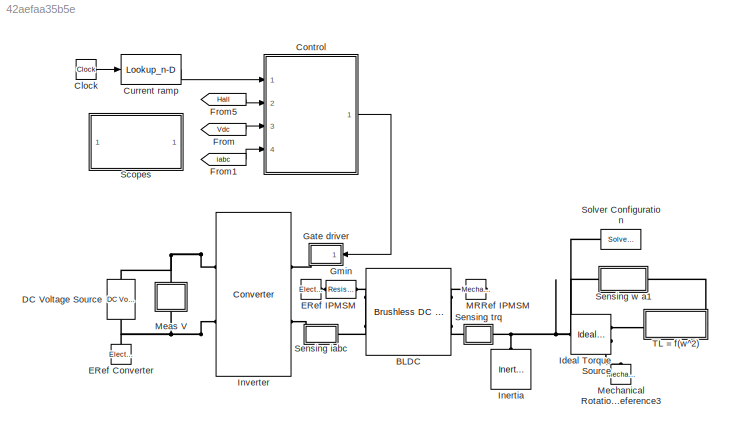
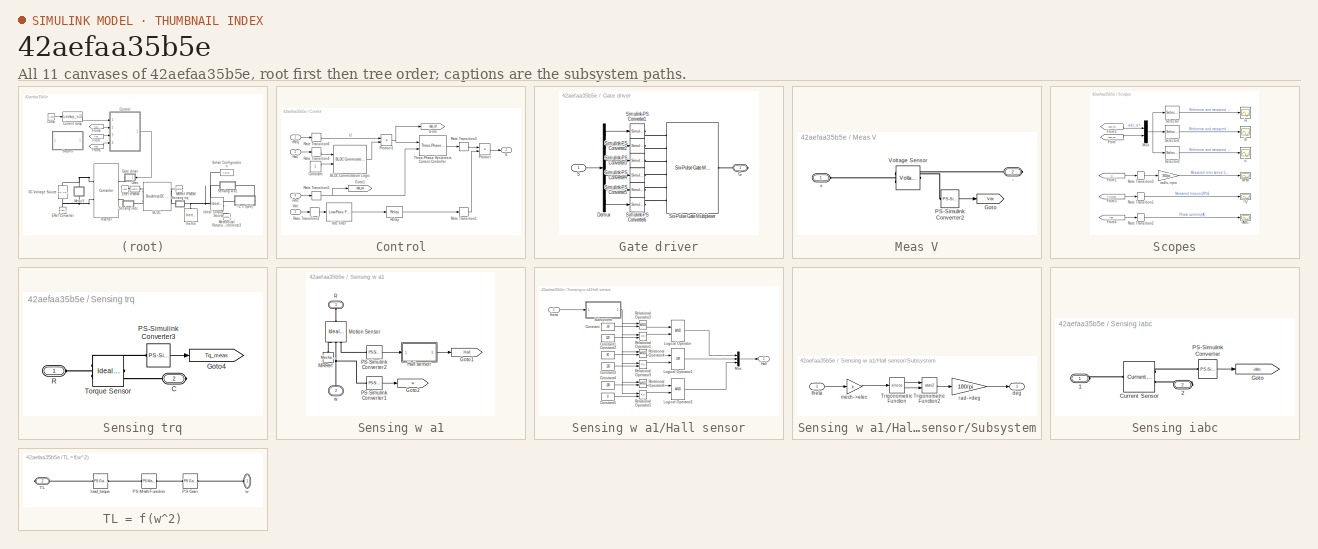
[diagram: thumbnail index - all 11 canvases of the model, root first then tree order]
MODEL slx_42aefaa35b5e
KIND model
CONFIG AbsTol = auto
CONFIG EnableMultiTasking = off
CONFIG FixedStep = auto
CONFIG MaxStep = auto
CONFIG MinStep = auto
CONFIG RelTol = 1e-3
CONFIG SampleTimeConstraint = Unconstrained
CONFIG Solver = VariableStepAuto
CONFIG SolverName = VariableStepAuto
CONFIG StartTime = 0.0
CONFIG StopTime = 1
BLOCK [Reference] BLDC  REF=pe_lib/Machines/Permanent Magnet
Rotor/Brushless DC Motor
  Ports = [0, 0, 0, 0, 0, 2, 2]
  SourceBlock = pe_lib/Machines/Permanent Magnet\nRotor/Brushless DC Motor
  SourceProductBaseCode = PS
  SourceProductName = Simscape Power Systems
  SourceType = Brushless DC Motor
BLOCK [Clock] Clock
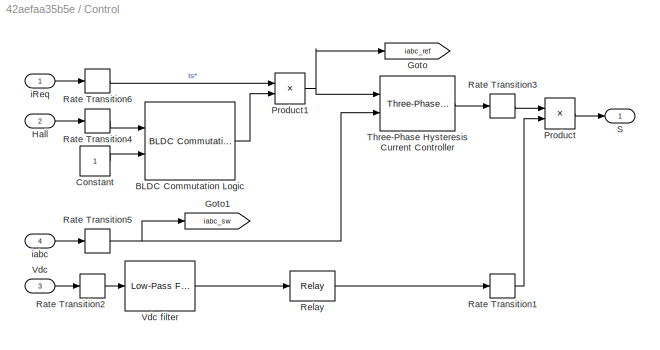
BLOCK [SubSystem] Control
  Ports = [4, 1]
  RequestExecContextInheritance = off
BLOCK [Reference] Control/BLDC Commutation Logic  REF=peBldcCommutationLogic/BLDC Commutation Logic
  Ports = [2, 1]
  SourceBlock = peBldcCommutationLogic/BLDC Commutation Logic
  SourceType = BLDC Commutation Logic
BLOCK [Constant] Control/Constant
BLOCK [Goto] Control/Goto
  GotoTag = iabc_ref
  TagVisibility = global
BLOCK [Goto] Control/Goto1
  GotoTag = iabc_sw
  TagVisibility = global
BLOCK [Inport] Control/Hall
  IconDisplay = Port number
  Port = 2
BLOCK [Product] Control/Product
  InputSameDT = off
  OutDataTypeStr = Inherit: Inherit via internal rule
  Ports = [2, 1]
  RndMeth = Floor
  SaturateOnIntegerOverflow = off
BLOCK [Product] Control/Product1
  InputSameDT = off
  OutDataTypeStr = Inherit: Inherit via internal rule
  Ports = [2, 1]
  RndMeth = Floor
  SaturateOnIntegerOverflow = off
BLOCK [RateTransition] Control/Rate Transition1
  OutPortSampleTime = Ts
BLOCK [RateTransition] Control/Rate Transition2
  OutPortSampleTime = Tsc
BLOCK [RateTransition] Control/Rate Transition3
  OutPortSampleTime = Ts
BLOCK [RateTransition] Control/Rate Transition4
  OutPortSampleTime = Tsc
BLOCK [RateTransition] Control/Rate Transition5
  OutPortSampleTime = Tsc
BLOCK [RateTransition] Control/Rate Transition6
  OutPortSampleTime = Tsc
BLOCK [Relay] Control/Relay
  InputProcessing = Elements as channels (sample based)
  OffSwitchValue = Vdc/4
  OnSwitchValue = Vdc/2
BLOCK [Outport] Control/S
  IconDisplay = Port number
BLOCK [Reference] Control/Three-Phase Hysteresis Current Controller  REF=peHysteresisControl/Three-Phase Hysteresis
Current Controller
  Ports = [2, 1]
  SourceBlock = peHysteresisControl/Three-Phase Hysteresis\nCurrent Controller
  SourceType = Three-Phase Hysteresis Current Controller
BLOCK [Inport] Control/Vdc
  IconDisplay = Port number
  Port = 3
BLOCK [Reference] Control/Vdc filter  REF=peGeneralControl/Low-Pass Filter
(Discrete or Continuous)
  Ports = [1, 1]
  SourceBlock = peGeneralControl/Low-Pass Filter\n(Discrete or Continuous)
  SourceType = Low-Pass Filter (Discrete or Continuous)
BLOCK [Inport] Control/iReq
  IconDisplay = Port number
BLOCK [Inport] Control/iabc
  IconDisplay = Port number
  Port = 4
BLOCK [Lookup_n-D] Current ramp
  BreakpointsForDimension1 = [0 0.5 1]
  InternalRulePriority = Speed
  NumberOfTableDimensions = 1
  Ports = [1, 1]
  RndMeth = Simplest
  Table = [0 iref iref]
BLOCK [Reference] DC Voltage Source  REF=fl_lib/Electrical/Electrical Sources/DC Voltage Source
  Ports = [0, 0, 0, 0, 0, 1, 1]
  SourceBlock = fl_lib/Electrical/Electrical Sources/DC Voltage Source
  SourceProductName = Foundation Library
  SourceType = DC Voltage Source
BLOCK [Reference] ERef Converter  REF=fl_lib/Electrical/Electrical Elements/Electrical Reference
  Ports = [0, 0, 0, 0, 0, 1]
  SourceBlock = fl_lib/Electrical/Electrical Elements/Electrical Reference
  SourceProductName = Foundation Library
  SourceType = Electrical Reference
BLOCK [Reference] ERef IPMSM  REF=fl_lib/Electrical/Electrical Elements/Electrical Reference
  Ports = [0, 0, 0, 0, 0, 1]
  SourceBlock = fl_lib/Electrical/Electrical Elements/Electrical Reference
  SourceProductName = Foundation Library
  SourceType = Electrical Reference
BLOCK [From] From
  GotoTag = Vdc
  TagVisibility = global
BLOCK [From] From1
  GotoTag = iabc
  TagVisibility = global
BLOCK [From] From5
  GotoTag = Hall
  TagVisibility = global
BLOCK [SubSystem] Gate driver
  Ports = [1, 0, 0, 0, 0, 0, 1]
  RequestExecContextInheritance = off
BLOCK [Demux] Gate driver/Demux
  DisplayOption = bar
  Outputs = 6
  Ports = [1, 6]
BLOCK [PMIOPort] Gate driver/G
  Side = Right
BLOCK [Inport] Gate driver/S
  IconDisplay = Port number
BLOCK [Reference] Gate driver/Simulink-PS Converter1  REF=nesl_utility/Simulink-PS
Converter
  Ports = [1, 0, 0, 0, 0, 0, 1]
  SourceBlock = nesl_utility/Simulink-PS\nConverter
  SourceProductBaseCode = SS
  SourceProductName = Simscape
  SourceType = Simulink-PS\nConverter
BLOCK [Reference] Gate driver/Simulink-PS Converter2  REF=nesl_utility/Simulink-PS
Converter
  Ports = [1, 0, 0, 0, 0, 0, 1]
  SourceBlock = nesl_utility/Simulink-PS\nConverter
  SourceProductBaseCode = SS
  SourceProductName = Simscape
  SourceType = Simulink-PS\nConverter
BLOCK [Reference] Gate driver/Simulink-PS Converter3  REF=nesl_utility/Simulink-PS
Converter
  Ports = [1, 0, 0, 0, 0, 0, 1]
  SourceBlock = nesl_utility/Simulink-PS\nConverter
  SourceProductBaseCode = SS
  SourceProductName = Simscape
  SourceType = Simulink-PS\nConverter
BLOCK [Reference] Gate driver/Simulink-PS Converter4  REF=nesl_utility/Simulink-PS
Converter
  Ports = [1, 0, 0, 0, 0, 0, 1]
  SourceBlock = nesl_utility/Simulink-PS\nConverter
  SourceProductBaseCode = SS
  SourceProductName = Simscape
  SourceType = Simulink-PS\nConverter
BLOCK [Reference] Gate driver/Simulink-PS Converter5  REF=nesl_utility/Simulink-PS
Converter
  Ports = [1, 0, 0, 0, 0, 0, 1]
  SourceBlock = nesl_utility/Simulink-PS\nConverter
  SourceProductBaseCode = SS
  SourceProductName = Simscape
  SourceType = Simulink-PS\nConverter
BLOCK [Reference] Gate driver/Simulink-PS Converter6  REF=nesl_utility/Simulink-PS
Converter
  Ports = [1, 0, 0, 0, 0, 0, 1]
  SourceBlock = nesl_utility/Simulink-PS\nConverter
  SourceProductBaseCode = SS
  SourceProductName = Simscape
  SourceType = Simulink-PS\nConverter
BLOCK [Reference] Gate driver/Six-Pulse Gate Multiplexer  REF=pe_lib/Semiconductors/Six-Pulse Gate
Multiplexer
  Ports = [0, 0, 0, 0, 0, 6, 1]
  SourceBlock = pe_lib/Semiconductors/Six-Pulse Gate\nMultiplexer
  SourceProductBaseCode = PS
  SourceProductName = Simscape Power Systems
  SourceType = Six-Pulse Gate\nMultiplexer
BLOCK [Reference] Gmin  REF=fl_lib/Electrical/Electrical Elements/Resistor
  Ports = [0, 0, 0, 0, 0, 1, 1]
  SourceBlock = fl_lib/Electrical/Electrical Elements/Resistor
  SourceProductName = Foundation Library
  SourceType = Resistor
BLOCK [Reference] Ideal Torque Source  REF=fl_lib/Mechanical/Mechanical Sources/Ideal Torque Source
  Ports = [0, 0, 0, 0, 0, 1, 2]
  SourceBlock = fl_lib/Mechanical/Mechanical Sources/Ideal Torque Source
  SourceProductBaseCode = SS
  SourceProductName = Simscape
  SourceType = Ideal Torque Source
BLOCK [Reference] Inertia  REF=fl_lib/Mechanical/Rotational Elements/Inertia
  Ports = [0, 0, 0, 0, 0, 1]
  SourceBlock = fl_lib/Mechanical/Rotational Elements/Inertia
  SourceProductName = Foundation Library
  SourceType = Inertia
BLOCK [Reference] Inverter  REF=pe_lib/Semiconductors/Converter
  Ports = [0, 0, 0, 0, 0, 2, 2]
  SourceBlock = pe_lib/Semiconductors/Converter
  SourceProductBaseCode = PS
  SourceProductName = Simscape Power Systems
  SourceType = Converter
BLOCK [Reference] MRRef IPMSM  REF=fl_lib/Mechanical/Rotational Elements/Mechanical
Rotational Reference
  Ports = [0, 0, 0, 0, 0, 1]
  SourceBlock = fl_lib/Mechanical/Rotational Elements/Mechanical\nRotational Reference
  SourceProductName = Foundation Library
  SourceType = Mechanical\nRotational Reference
BLOCK [SubSystem] Meas V
  Ports = [0, 0, 0, 0, 0, 1, 1]
  RequestExecContextInheritance = off
BLOCK [PMIOPort] Meas V/+
  Side = Left
BLOCK [PMIOPort] Meas V/-
  Port = 2
  Side = Right
BLOCK [Goto] Meas V/Goto
  GotoTag = Vdc
  TagVisibility = global
BLOCK [Reference] Meas V/PS-Simulink Converter2  REF=nesl_utility/PS-Simulink
Converter
  Ports = [0, 1, 0, 0, 0, 1]
  SourceBlock = nesl_utility/PS-Simulink\nConverter
  SourceProductBaseCode = SS
  SourceProductName = Simscape
  SourceType = PS-Simulink\nConverter
BLOCK [Reference] Meas V/Voltage Sensor  REF=fl_lib/Electrical/Electrical Sensors/Voltage Sensor
  Ports = [0, 0, 0, 0, 0, 1, 2]
  SourceBlock = fl_lib/Electrical/Electrical Sensors/Voltage Sensor
  SourceProductName = Foundation Library
  SourceType = Voltage Sensor
BLOCK [Reference] Mechanical Rotational Reference3  REF=fl_lib/Mechanical/Rotational Elements/Mechanical
Rotational Reference
  Ports = [0, 0, 0, 0, 0, 1]
  SourceBlock = fl_lib/Mechanical/Rotational Elements/Mechanical\nRotational Reference
  SourceProductName = Foundation Library
  SourceType = Mechanical\nRotational Reference
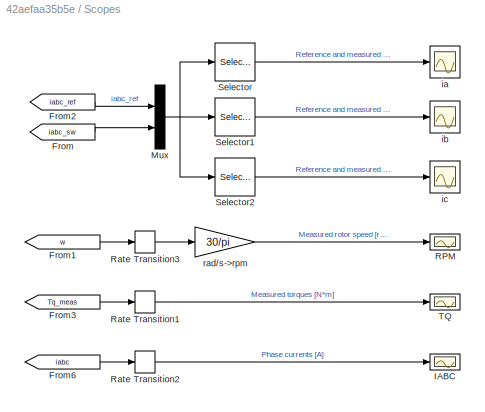
BLOCK [SubSystem] Scopes
  Ports = []
  RequestExecContextInheritance = off
BLOCK [From] Scopes/From
  GotoTag = iabc_sw
  TagVisibility = global
BLOCK [From] Scopes/From1
  GotoTag = w
  TagVisibility = global
BLOCK [From] Scopes/From2
  GotoTag = iabc_ref
  TagVisibility = global
BLOCK [From] Scopes/From3
  GotoTag = Tq_meas
  TagVisibility = global
BLOCK [From] Scopes/From6
  GotoTag = iabc
  TagVisibility = global
BLOCK [Scope] Scopes/IABC
  Floating = off
  NumInputPorts = 1
  Ports = [1]
  ScopeSpecificationString = Simulink.scopes.TimeScopeBlockCfg('CurrentConfiguration', extmgr.ConfigurationSet(extmgr.Configuration('Core','General UI',true),extmgr.Configuration('Core','Source UI',true),extmgr.Configuration('Sources','WiredSimulink',true,'DataLoggingVariableName','ScopeData1','DataLoggingSaveFormat','Array','DataLoggingDecimation','1','DataLoggingDecimateData',true),extmgr.Configuration('Visuals','Time Domai...<+1595ch>
BLOCK [Mux] Scopes/Mux
  DisplayOption = bar
  Inputs = 2
  Ports = [2, 1]
BLOCK [Scope] Scopes/RPM
  Floating = off
  NumInputPorts = 1
  Ports = [1]
  ScopeSpecificationString = Simulink.scopes.TimeScopeBlockCfg('CurrentConfiguration', extmgr.ConfigurationSet(extmgr.Configuration('Core','General UI',true),extmgr.Configuration('Core','Source UI',true),extmgr.Configuration('Sources','WiredSimulink',true,'DataLoggingVariableName','ScopeData5','DataLoggingSaveFormat','Array','DataLoggingDecimation','1','DataLoggingDecimateData',true),extmgr.Configuration('Visuals','Time Domai...<+1567ch>
BLOCK [RateTransition] Scopes/Rate Transition1
  OutPortSampleTime = Tsc
BLOCK [RateTransition] Scopes/Rate Transition2
  OutPortSampleTime = Tsc
BLOCK [RateTransition] Scopes/Rate Transition3
  OutPortSampleTime = Tsc
BLOCK [Selector] Scopes/Selector
  IndexOptions = Index vector (dialog)
  Indices = [1 4]
  InputPortWidth = 6
  OutputSizes = 1
  Ports = [1, 1]
BLOCK [Selector] Scopes/Selector1
  IndexOptions = Index vector (dialog)
  Indices = [2 5]
  InputPortWidth = 6
  OutputSizes = 1
  Ports = [1, 1]
BLOCK [Selector] Scopes/Selector2
  IndexOptions = Index vector (dialog)
  Indices = [3 6]
  InputPortWidth = 6
  OutputSizes = 1
  Ports = [1, 1]
BLOCK [Scope] Scopes/TQ
  Floating = off
  NumInputPorts = 1
  Ports = [1]
  ScopeSpecificationString = Simulink.scopes.TimeScopeBlockCfg('CurrentConfiguration', extmgr.ConfigurationSet(extmgr.Configuration('Core','General UI',true),extmgr.Configuration('Core','Source UI',true),extmgr.Configuration('Sources','WiredSimulink',true,'DataLoggingVariableName','ScopeData7','DataLoggingSaveFormat','Array','DataLoggingDecimation','1','DataLoggingDecimateData',true),extmgr.Configuration('Visuals','Time Domai...<+1545ch>
BLOCK [Scope] Scopes/ia
  Floating = off
  NumInputPorts = 1
  Ports = [1]
  ScopeSpecificationString = Simulink.scopes.TimeScopeBlockCfg('CurrentConfiguration', extmgr.ConfigurationSet(extmgr.Configuration('Core','General UI',true),extmgr.Configuration('Core','Source UI',true),extmgr.Configuration('Sources','WiredSimulink',true,'DataLoggingVariableName','ScopeData1'),extmgr.Configuration('Visuals','Time Domain',true,'SerializedDisplays',{struct('MinYLimReal','-91.30364','MaxYLimReal','82.31212','YL...<+1503ch>
BLOCK [Scope] Scopes/ib
  Floating = off
  NumInputPorts = 1
  Ports = [1]
  ScopeSpecificationString = Simulink.scopes.TimeScopeBlockCfg('CurrentConfiguration', extmgr.ConfigurationSet(extmgr.Configuration('Core','General UI',true),extmgr.Configuration('Core','Source UI',true),extmgr.Configuration('Sources','WiredSimulink',true,'DataLoggingVariableName','ScopeData2'),extmgr.Configuration('Visuals','Time Domain',true,'SerializedDisplays',{struct('MinYLimReal','-104.70441','MaxYLimReal','106.09797','...<+1492ch>
BLOCK [Scope] Scopes/ic
  Floating = off
  NumInputPorts = 1
  Ports = [1]
  ScopeSpecificationString = Simulink.scopes.TimeScopeBlockCfg('CurrentConfiguration', extmgr.ConfigurationSet(extmgr.Configuration('Core','General UI',true),extmgr.Configuration('Core','Source UI',true),extmgr.Configuration('Sources','WiredSimulink',true,'DataLoggingVariableName','ScopeData3'),extmgr.Configuration('Visuals','Time Domain',true,'SerializedDisplays',{struct('MinYLimReal','-101.83974','MaxYLimReal','101.95748','...<+1467ch>
BLOCK [Gain] Scopes/rad//s->rpm
  Gain = 30/pi
  OutDataTypeStr = Inherit: Inherit via internal rule
  ParamDataTypeStr = Inherit: Inherit via internal rule
  SaturateOnIntegerOverflow = off
BLOCK [SubSystem] Sensing iabc
  Ports = [0, 0, 0, 0, 0, 1, 1]
  RequestExecContextInheritance = off
BLOCK [PMIOPort] Sensing iabc/1
  Side = Left
BLOCK [PMIOPort] Sensing iabc/2
  Port = 2
  Side = Right
BLOCK [Reference] Sensing iabc/Current Sensor  REF=pe_lib/Sensors/Current Sensor
  Ports = [0, 0, 0, 0, 0, 1, 2]
  SourceBlock = pe_lib/Sensors/Current Sensor
  SourceProductBaseCode = PS
  SourceProductName = Simscape Power Systems
  SourceType = Current Sensor
BLOCK [Goto] Sensing iabc/Goto
  GotoTag = iabc
  TagVisibility = global
BLOCK [Reference] Sensing iabc/PS-Simulink Converter  REF=nesl_utility/PS-Simulink
Converter
  Ports = [0, 1, 0, 0, 0, 1]
  SourceBlock = nesl_utility/PS-Simulink\nConverter
  SourceProductBaseCode = SS
  SourceProductName = Simscape
  SourceType = PS-Simulink\nConverter
BLOCK [SubSystem] Sensing trq
  Ports = [0, 0, 0, 0, 0, 1, 1]
  RequestExecContextInheritance = off
BLOCK [PMIOPort] Sensing trq/C
  Port = 2
  Side = Right
BLOCK [Goto] Sensing trq/Goto4
  GotoTag = Tq_meas
  TagVisibility = global
BLOCK [Reference] Sensing trq/PS-Simulink Converter3  REF=nesl_utility/PS-Simulink
Converter
  Ports = [0, 1, 0, 0, 0, 1]
  SourceBlock = nesl_utility/PS-Simulink\nConverter
  SourceProductBaseCode = SS
  SourceProductName = Simscape
  SourceType = PS-Simulink\nConverter
BLOCK [PMIOPort] Sensing trq/R
  Side = Left
BLOCK [Reference] Sensing trq/Torque Sensor  REF=fl_lib/Mechanical/Mechanical Sensors/Ideal Torque Sensor
  Ports = [0, 0, 0, 0, 0, 1, 2]
  SourceBlock = fl_lib/Mechanical/Mechanical Sensors/Ideal Torque Sensor
  SourceProductName = Foundation Library
  SourceType = Ideal Torque Sensor
BLOCK [SubSystem] Sensing w a1
  Ports = [0, 0, 0, 0, 0, 1, 1]
  RequestExecContextInheritance = off
BLOCK [Goto] Sensing w a1/Goto1
  GotoTag = Hall
  TagVisibility = global
BLOCK [Goto] Sensing w a1/Goto2
  GotoTag = w
  TagVisibility = global
BLOCK [SubSystem] Sensing w a1/Hall sensor
  Ports = [1, 1]
  RequestExecContextInheritance = off
BLOCK [Constant] Sensing w a1/Hall sensor/Constant
  Value = -60
BLOCK [Constant] Sensing w a1/Hall sensor/Constant1
  Value = 120
BLOCK [Constant] Sensing w a1/Hall sensor/Constant2
  Value = 60
BLOCK [Constant] Sensing w a1/Hall sensor/Constant3
  Value = -120
BLOCK [Constant] Sensing w a1/Hall sensor/Constant4
  Value = -180
BLOCK [Constant] Sensing w a1/Hall sensor/Constant5
  Value = 0
BLOCK [Outport] Sensing w a1/Hall sensor/Hall
  IconDisplay = Port number
BLOCK [Logic] Sensing w a1/Hall sensor/Logical Operator
  AllPortsSameDT = off
  OutDataTypeStr = boolean
  Ports = [2, 1]
BLOCK [Logic] Sensing w a1/Hall sensor/Logical Operator1
  AllPortsSameDT = off
  Operator = OR
  OutDataTypeStr = boolean
  Ports = [2, 1]
BLOCK [Logic] Sensing w a1/Hall sensor/Logical Operator2
  AllPortsSameDT = off
  OutDataTypeStr = boolean
  Ports = [2, 1]
BLOCK [Mux] Sensing w a1/Hall sensor/Mux
  DisplayOption = bar
  Inputs = 3
  Ports = [3, 1]
BLOCK [RelationalOperator] Sensing w a1/Hall sensor/Relational Operator1
  Operator = <=
  Ports = [2, 1]
BLOCK [RelationalOperator] Sensing w a1/Hall sensor/Relational Operator2
  Ports = [2, 1]
BLOCK [RelationalOperator] Sensing w a1/Hall sensor/Relational Operator3
  Operator = <=
  Ports = [2, 1]
BLOCK [RelationalOperator] Sensing w a1/Hall sensor/Relational Operator4
  Ports = [2, 1]
BLOCK [RelationalOperator] Sensing w a1/Hall sensor/Relational Operator5
  Operator = <=
  Ports = [2, 1]
BLOCK [RelationalOperator] Sensing w a1/Hall sensor/Relational Operator6
  Ports = [2, 1]
BLOCK [SubSystem] Sensing w a1/Hall sensor/Subsystem
  Ports = [1, 1]
  RequestExecContextInheritance = off
BLOCK [Trigonometry] Sensing w a1/Hall sensor/Subsystem/Trigonometric Function
  Operator = sincos
  Ports = [1, 2]
BLOCK [Trigonometry] Sensing w a1/Hall sensor/Subsystem/Trigonometric Function2
  Operator = atan2
  Ports = [2, 1]
BLOCK [Outport] Sensing w a1/Hall sensor/Subsystem/deg
  IconDisplay = Port number
BLOCK [Gain] Sensing w a1/Hall sensor/Subsystem/mech->elec
  Gain = p
  OutDataTypeStr = Inherit: Inherit via internal rule
  ParamDataTypeStr = Inherit: Inherit via internal rule
  SaturateOnIntegerOverflow = off
BLOCK [Gain] Sensing w a1/Hall sensor/Subsystem/rad->deg
  Gain = 180/pi
BLOCK [Inport] Sensing w a1/Hall sensor/Subsystem/theta
  IconDisplay = Port number
BLOCK [Inport] Sensing w a1/Hall sensor/theta
  IconDisplay = Port number
BLOCK [Reference] Sensing w a1/MRRef  REF=fl_lib/Mechanical/Rotational Elements/Mechanical
Rotational Reference
  Ports = [0, 0, 0, 0, 0, 1]
  SourceBlock = fl_lib/Mechanical/Rotational Elements/Mechanical\nRotational Reference
  SourceProductName = Foundation Library
  SourceType = Mechanical\nRotational Reference
BLOCK [Reference] Sensing w a1/Motion Sensor  REF=fl_lib/Mechanical/Mechanical Sensors/Ideal Rotational
Motion Sensor
  Ports = [0, 0, 0, 0, 0, 1, 3]
  SourceBlock = fl_lib/Mechanical/Mechanical Sensors/Ideal Rotational\nMotion Sensor
  SourceProductName = Foundation Library
  SourceType = Ideal Rotational\nMotion Sensor
BLOCK [Reference] Sensing w a1/PS-Simulink Converter1  REF=nesl_utility/PS-Simulink
Converter
  Ports = [0, 1, 0, 0, 0, 1]
  SourceBlock = nesl_utility/PS-Simulink\nConverter
  SourceProductBaseCode = SS
  SourceProductName = Simscape
  SourceType = PS-Simulink\nConverter
BLOCK [Reference] Sensing w a1/PS-Simulink Converter2  REF=nesl_utility/PS-Simulink
Converter
  Ports = [0, 1, 0, 0, 0, 1]
  SourceBlock = nesl_utility/PS-Simulink\nConverter
  SourceProductBaseCode = SS
  SourceProductName = Simscape
  SourceType = PS-Simulink\nConverter
BLOCK [PMIOPort] Sensing w a1/R
  Side = Left
BLOCK [PMIOPort] Sensing w a1/w
  Port = 2
  Side = Right
BLOCK [Reference] Solver Configuration  REF=nesl_utility/Solver
Configuration
  Ports = [0, 0, 0, 0, 0, 0, 1]
  SourceBlock = nesl_utility/Solver\nConfiguration
  SourceProductBaseCode = SS
  SourceProductName = Simscape
  SourceType = Solver\nConfiguration
BLOCK [SubSystem] TL = f(w^2)
  Ports = [0, 0, 0, 0, 0, 1, 1]
  RequestExecContextInheritance = off
BLOCK [Reference] TL = f(w^2)/PS Gain  REF=fl_lib/Physical Signals/Functions/PS Gain
  Ports = [0, 0, 0, 0, 0, 1, 1]
  SourceBlock = fl_lib/Physical Signals/Functions/PS Gain
  SourceProductBaseCode = SS
  SourceProductName = Simscape
  SourceType = PS Gain
BLOCK [Reference] TL = f(w^2)/PS Math Function  REF=fl_lib/Physical Signals/Functions/PS Math Function
  Ports = [0, 0, 0, 0, 0, 1, 1]
  SourceBlock = fl_lib/Physical Signals/Functions/PS Math Function
  SourceProductBaseCode = SS
  SourceProductName = Simscape
  SourceType = PS Math Function
BLOCK [PMIOPort] TL = f(w^2)/TL
  Port = 2
  Side = Right
BLOCK [Reference] TL = f(w^2)/load_torque  REF=fl_lib/Physical Signals/Functions/PS Gain
  Ports = [0, 0, 0, 0, 0, 1, 1]
  SourceBlock = fl_lib/Physical Signals/Functions/PS Gain
  SourceProductBaseCode = SS
  SourceProductName = Simscape
  SourceType = PS Gain
BLOCK [PMIOPort] TL = f(w^2)/w
  Side = Left
LINE Clock:1 -> Current ramp:1
LINE Control/BLDC Commutation Logic:1 -> Control/Product1:2
LINE Control/Constant:1 -> Control/BLDC Commutation Logic:2
LINE Control/Hall:1 -> Control/Rate Transition4:1
NET Control/Product1:1 -> Control/Goto:1, Control/Three-Phase Hysteresis Current Controller:1
LINE Control/Product:1 -> Control/S:1
LINE Control/Rate Transition1:1 -> Control/Product:2
LINE Control/Rate Transition2:1 -> Control/Vdc filter:1
LINE Control/Rate Transition3:1 -> Control/Product:1
LINE Control/Rate Transition4:1 -> Control/BLDC Commutation Logic:1
NET Control/Rate Transition5:1 -> Control/Goto1:1, Control/Three-Phase Hysteresis Current Controller:2
LINE Control/Rate Transition6:1 -> Control/Product1:1
LINE Control/Relay:1 -> Control/Rate Transition1:1
LINE Control/Three-Phase Hysteresis Current Controller:1 -> Control/Rate Transition3:1
LINE Control/Vdc filter:1 -> Control/Relay:1
LINE Control/Vdc:1 -> Control/Rate Transition2:1
LINE Control/iReq:1 -> Control/Rate Transition6:1
LINE Control/iabc:1 -> Control/Rate Transition5:1
LINE Control:1 -> Gate driver:1
LINE Current ramp:1 -> Control:1
LINE From1:1 -> Control:4
LINE From5:1 -> Control:2
LINE From:1 -> Control:3
LINE Gate driver/Demux:1 -> Gate driver/Simulink-PS Converter1:1
LINE Gate driver/Demux:2 -> Gate driver/Simulink-PS Converter2:1
LINE Gate driver/Demux:3 -> Gate driver/Simulink-PS Converter3:1
LINE Gate driver/Demux:4 -> Gate driver/Simulink-PS Converter4:1
LINE Gate driver/Demux:5 -> Gate driver/Simulink-PS Converter5:1
LINE Gate driver/Demux:6 -> Gate driver/Simulink-PS Converter6:1
LINE Gate driver/S:1 -> Gate driver/Demux:1
LINE Meas V/PS-Simulink Converter2:1 -> Meas V/Goto:1
LINE Scopes/From1:1 -> Scopes/Rate Transition3:1
LINE Scopes/From2:1 -> Scopes/Mux:1
LINE Scopes/From3:1 -> Scopes/Rate Transition1:1
LINE Scopes/From6:1 -> Scopes/Rate Transition2:1
LINE Scopes/From:1 -> Scopes/Mux:2
NET Scopes/Mux:1 -> Scopes/Selector1:1, Scopes/Selector2:1, Scopes/Selector:1
LINE Scopes/Rate Transition1:1 -> Scopes/TQ:1
LINE Scopes/Rate Transition2:1 -> Scopes/IABC:1
LINE Scopes/Rate Transition3:1 -> Scopes/rad//s->rpm:1
LINE Scopes/Selector1:1 -> Scopes/ib:1
LINE Scopes/Selector2:1 -> Scopes/ic:1
LINE Scopes/Selector:1 -> Scopes/ia:1
LINE Scopes/rad//s->rpm:1 -> Scopes/RPM:1
LINE Sensing iabc/PS-Simulink Converter:1 -> Sensing iabc/Goto:1
LINE Sensing trq/PS-Simulink Converter3:1 -> Sensing trq/Goto4:1
LINE Sensing w a1/Hall sensor/Constant1:1 -> Sensing w a1/Hall sensor/Relational Operator1:2
LINE Sensing w a1/Hall sensor/Constant2:1 -> Sensing w a1/Hall sensor/Relational Operator4:2
LINE Sensing w a1/Hall sensor/Constant3:1 -> Sensing w a1/Hall sensor/Relational Operator3:2
LINE Sensing w a1/Hall sensor/Constant4:1 -> Sensing w a1/Hall sensor/Relational Operator6:2
LINE Sensing w a1/Hall sensor/Constant5:1 -> Sensing w a1/Hall sensor/Relational Operator5:2
LINE Sensing w a1/Hall sensor/Constant:1 -> Sensing w a1/Hall sensor/Relational Operator2:2
LINE Sensing w a1/Hall sensor/Logical Operator1:1 -> Sensing w a1/Hall sensor/Mux:2
LINE Sensing w a1/Hall sensor/Logical Operator2:1 -> Sensing w a1/Hall sensor/Mux:3
LINE Sensing w a1/Hall sensor/Logical Operator:1 -> Sensing w a1/Hall sensor/Mux:1
LINE Sensing w a1/Hall sensor/Mux:1 -> Sensing w a1/Hall sensor/Hall:1
LINE Sensing w a1/Hall sensor/Relational Operator1:1 -> Sensing w a1/Hall sensor/Logical Operator:2
LINE Sensing w a1/Hall sensor/Relational Operator2:1 -> Sensing w a1/Hall sensor/Logical Operator:1
LINE Sensing w a1/Hall sensor/Relational Operator3:1 -> Sensing w a1/Hall sensor/Logical Operator1:2
LINE Sensing w a1/Hall sensor/Relational Operator4:1 -> Sensing w a1/Hall sensor/Logical Operator1:1
LINE Sensing w a1/Hall sensor/Relational Operator5:1 -> Sensing w a1/Hall sensor/Logical Operator2:2
LINE Sensing w a1/Hall sensor/Relational Operator6:1 -> Sensing w a1/Hall sensor/Logical Operator2:1
LINE Sensing w a1/Hall sensor/Subsystem/Trigonometric Function2:1 -> Sensing w a1/Hall sensor/Subsystem/rad->deg:1
LINE Sensing w a1/Hall sensor/Subsystem/Trigonometric Function:1 -> Sensing w a1/Hall sensor/Subsystem/Trigonometric Function2:1
LINE Sensing w a1/Hall sensor/Subsystem/Trigonometric Function:2 -> Sensing w a1/Hall sensor/Subsystem/Trigonometric Function2:2
LINE Sensing w a1/Hall sensor/Subsystem/mech->elec:1 -> Sensing w a1/Hall sensor/Subsystem/Trigonometric Function:1
LINE Sensing w a1/Hall sensor/Subsystem/rad->deg:1 -> Sensing w a1/Hall sensor/Subsystem/deg:1
LINE Sensing w a1/Hall sensor/Subsystem/theta:1 -> Sensing w a1/Hall sensor/Subsystem/mech->elec:1
NET Sensing w a1/Hall sensor/Subsystem:1 -> Sensing w a1/Hall sensor/Relational Operator1:1, Sensing w a1/Hall sensor/Relational Operator2:1, Sensing w a1/Hall sensor/Relational Operator3:1, Sensing w a1/Hall sensor/Relational Operator4:1, Sensing w a1/Hall sensor/Relational Operator5:1, Sensing w a1/Hall sensor/Relational Operator6:1
LINE Sensing w a1/Hall sensor/theta:1 -> Sensing w a1/Hall sensor/Subsystem:1
LINE Sensing w a1/Hall sensor:1 -> Sensing w a1/Goto1:1
LINE Sensing w a1/PS-Simulink Converter1:1 -> Sensing w a1/Goto2:1
LINE Sensing w a1/PS-Simulink Converter2:1 -> Sensing w a1/Hall sensor:1
PLINE BLDC:LConn1 -- Sensing iabc:RConn1
PLINE BLDC:LConn2 -- Gmin:RConn1
PLINE BLDC:RConn1 -- Sensing trq:LConn1
PLINE BLDC:RConn2 -- MRRef IPMSM:LConn1
PNET net1: DC Voltage Source:LConn1 -- Inverter:RConn1 -- Meas V:LConn1
PNET net2: DC Voltage Source:RConn1 -- ERef Converter:LConn1 -- Inverter:RConn2 -- Meas V:RConn1
PLINE ERef IPMSM:LConn1 -- Gmin:LConn1
PLINE Gate driver/G:RConn1 -- Gate driver/Six-Pulse Gate Multiplexer:RConn1
PLINE Gate driver/Simulink-PS Converter1:RConn1 -- Gate driver/Six-Pulse Gate Multiplexer:LConn1
PLINE Gate driver/Simulink-PS Converter2:RConn1 -- Gate driver/Six-Pulse Gate Multiplexer:LConn2
PLINE Gate driver/Simulink-PS Converter3:RConn1 -- Gate driver/Six-Pulse Gate Multiplexer:LConn3
PLINE Gate driver/Simulink-PS Converter4:RConn1 -- Gate driver/Six-Pulse Gate Multiplexer:LConn4
PLINE Gate driver/Simulink-PS Converter5:RConn1 -- Gate driver/Six-Pulse Gate Multiplexer:LConn5
PLINE Gate driver/Simulink-PS Converter6:RConn1 -- Gate driver/Six-Pulse Gate Multiplexer:LConn6
PLINE Gate driver:RConn1 -- Inverter:LConn1
PNET net3: Ideal Torque Source:LConn1 -- Inertia:LConn1 -- Sensing trq:RConn1 -- Sensing w a1:LConn1 -- Solver Configuration:RConn1
PLINE Ideal Torque Source:RConn1 -- TL = f(w^2):RConn1
PLINE Ideal Torque Source:RConn2 -- Mechanical Rotational Reference3:LConn1
PLINE Inverter:LConn2 -- Sensing iabc:LConn1
PLINE Meas V/+:RConn1 -- Meas V/Voltage Sensor:LConn1
PLINE Meas V/-:RConn1 -- Meas V/Voltage Sensor:RConn2
PLINE Meas V/PS-Simulink Converter2:LConn1 -- Meas V/Voltage Sensor:RConn1
PLINE Sensing iabc/1:RConn1 -- Sensing iabc/Current Sensor:LConn1
PLINE Sensing iabc/2:RConn1 -- Sensing iabc/Current Sensor:RConn2
PLINE Sensing iabc/Current Sensor:RConn1 -- Sensing iabc/PS-Simulink Converter:LConn1
PLINE Sensing trq/C:RConn1 -- Sensing trq/Torque Sensor:RConn1
PLINE Sensing trq/PS-Simulink Converter3:LConn1 -- Sensing trq/Torque Sensor:RConn2
PLINE Sensing trq/R:RConn1 -- Sensing trq/Torque Sensor:LConn1
PLINE Sensing w a1/MRRef:LConn1 -- Sensing w a1/Motion Sensor:RConn1
PLINE Sensing w a1/Motion Sensor:LConn1 -- Sensing w a1/R:RConn1
PNET net4: Sensing w a1/Motion Sensor:RConn2 -- Sensing w a1/PS-Simulink Converter1:LConn1 -- Sensing w a1/w:RConn1
PLINE Sensing w a1/Motion Sensor:RConn3 -- Sensing w a1/PS-Simulink Converter2:LConn1
PLINE Sensing w a1:RConn1 -- TL = f(w^2):LConn1
PLINE TL = f(w^2)/PS Gain:LConn1 -- TL = f(w^2)/w:RConn1
PLINE TL = f(w^2)/PS Gain:RConn1 -- TL = f(w^2)/PS Math Function:LConn1
PLINE TL = f(w^2)/PS Math Function:RConn1 -- TL = f(w^2)/load_torque:LConn1
PLINE TL = f(w^2)/TL:RConn1 -- TL = f(w^2)/load_torque:RConn1
note: NET lines group one-source signal fan-out (src -> all destinations, sorted); 1:1 wires keep LINE; PNET lines group multi-terminal physical nets as a canonical sorted terminal list (undirected conserving connections); 2-terminal nets keep the pairwise PLINE form
